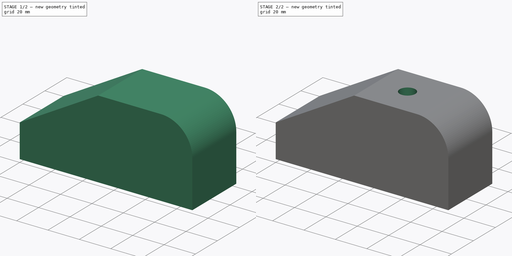
[diagram: build sequence overview — one tinted view per stage of 2, left to right]
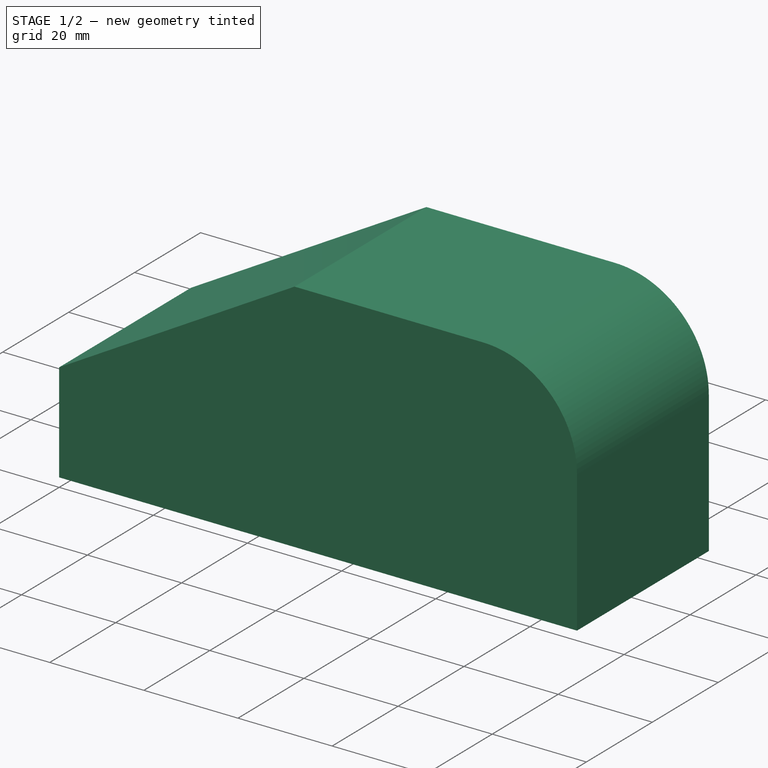
[diagram: stage 1 of 2 — iso view after this stage's code; geometry added in this stage tinted green]
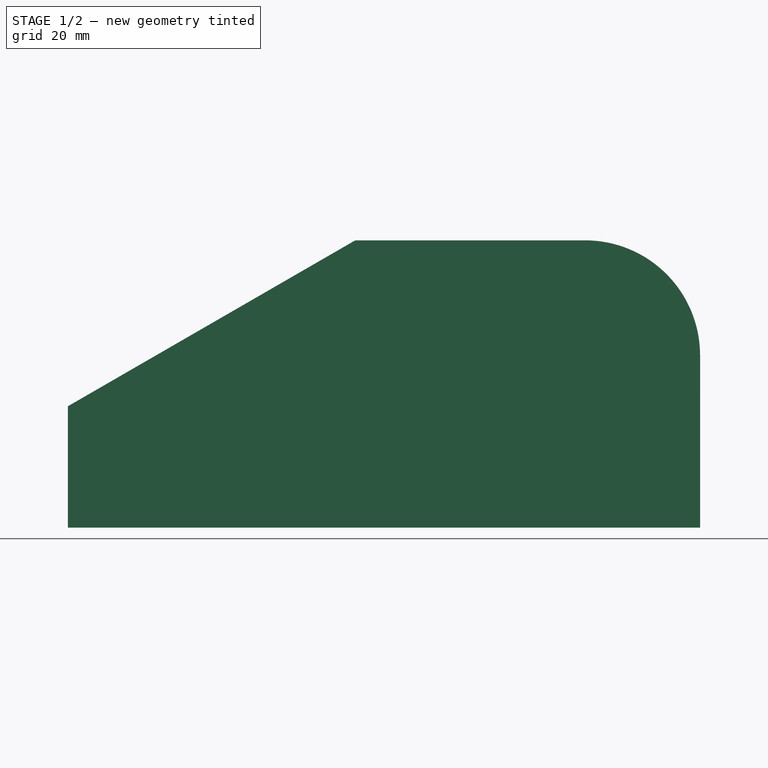
[diagram: stage 1 of 2 — front view after this stage's code; geometry added in this stage tinted green]
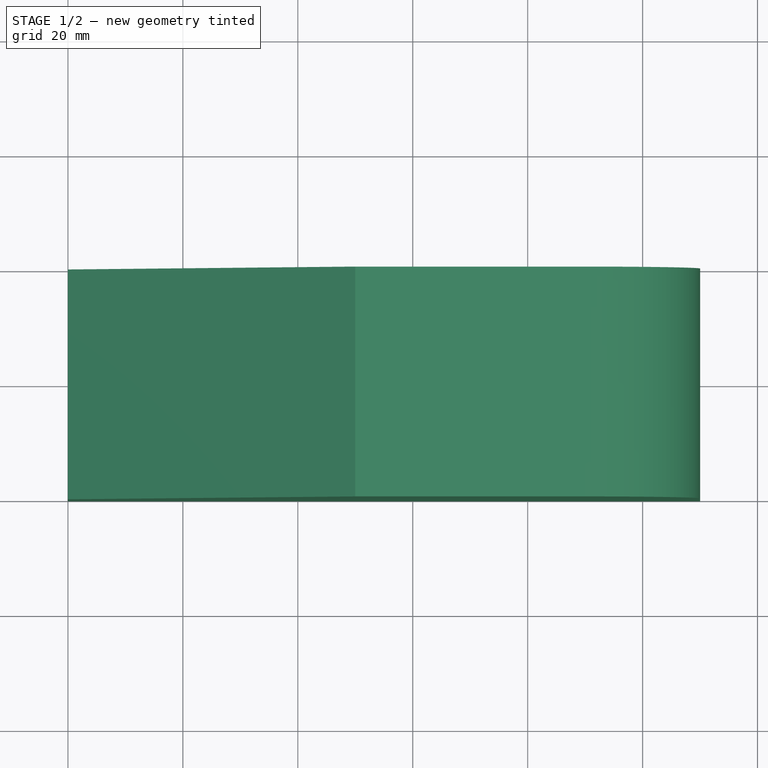
[diagram: stage 1 of 2 — top view after this stage's code; geometry added in this stage tinted green]
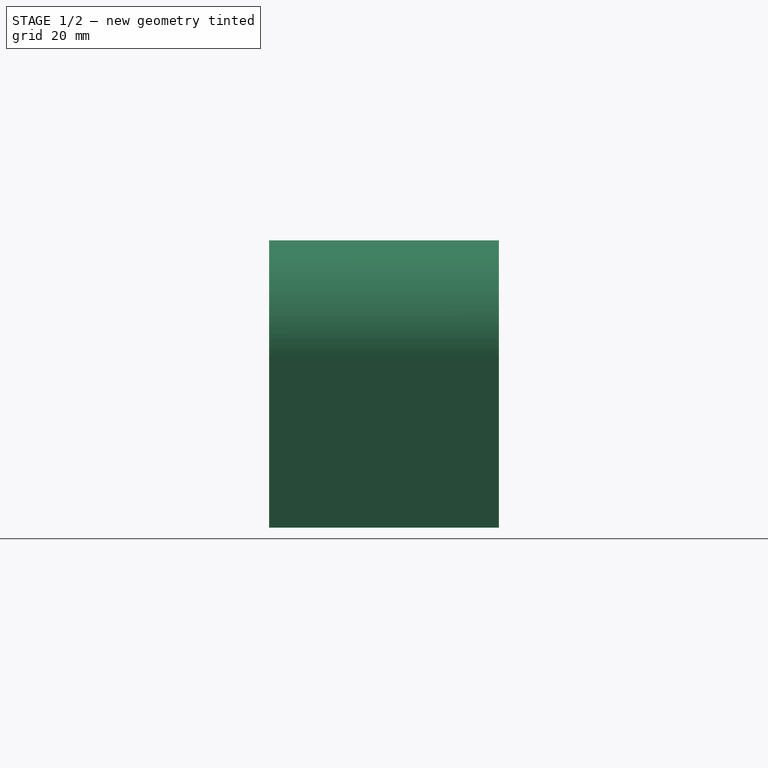
[diagram: stage 1 of 2 — right view after this stage's code; geometry added in this stage tinted green]
FCSTD DOCUMENT  (FreeCAD 0.18R16117 (Git))
Label: freecad_tutorial1
License: All rights reserved
LicenseURL: http://en.wikipedia.org/wiki/All_rights_reserved
objects: Sketcher::SketchObject×2, PartDesign::Pad×1, PartDesign::Pocket×1, PartDesign::Body×1
note: 7 computed .brp shape members not serialized (recipe doc carries the construction recipe); baked Part::Feature solids carry a one-line shape summary decoded from their .brp

FEATURE [Sketcher::SketchObject] Sketch
  MapMode = 5
  Placement = pos=(0,0,0) rot=(1,0,0;1.5708rad)
  Support = -> [XZ_Plane]
  sketch-geometry (6):
    g0: LineSegment StartX=0 StartY=0 StartZ=0 EndX=110 EndY=0 EndZ=0
    g1: LineSegment StartX=110 StartY=0 StartZ=0 EndX=110 EndY=30 EndZ=0
    g2: LineSegment StartX=0 StartY=0 StartZ=0 EndX=0 EndY=21.1325 EndZ=0
    g3: LineSegment StartX=0 StartY=21.1325 StartZ=0 EndX=50 EndY=50 EndZ=0
    g4: LineSegment StartX=50 StartY=50 StartZ=0 EndX=90 EndY=50 EndZ=0
    g5: ArcOfCircle CenterX=90 CenterY=30 CenterZ=0 NormalX=0 NormalY=0 NormalZ=1 AngleXU=0 Radius=20 StartAngle=0 EndAngle=1.5708
  constraints (18):
    c: Horizontal(g0)
    c: Horizontal(g4)
    c: Vertical(g1)
    c: Vertical(g2)
    c: Angle(g0,g3) = 0.523599
    c: DistanceX(g0,g0) = 110
    c: Coincident(g2,g0)
    c: Coincident(g2,g3)
    c: Coincident(g4,g3)
    c: DistanceY(g0,g3) = 50
    c: DistanceX(g2,g3) = 50
    c: Coincident(g1,g0)
    c: Radius(g5) = 20
    c: Tangent(g5,g4) = 1.5708
    c: Tangent(g5,g1) = -1.5708
    c: Coincident(g0,g-1)
    c: Distance(g4) = 40
    c: Distance(g1) = 30
FEATURE [PartDesign::Pad] Pad
  Length = 40
  Length2 = 100
  Placement = pos=(0,0,0) rot=(1,0,0;1.5708rad)
  Profile = -> Sketch
  Type = 0
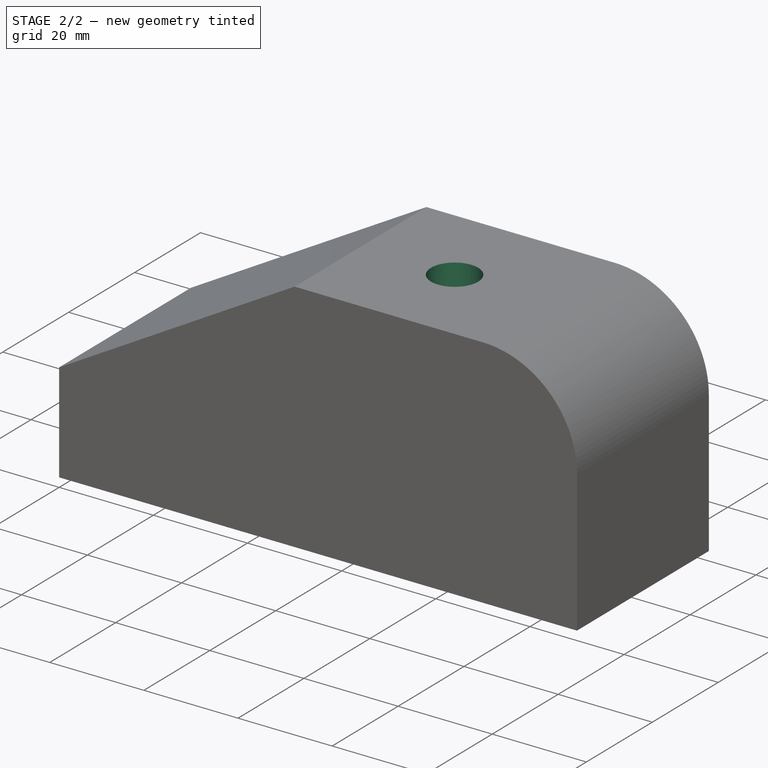
[diagram: stage 2 of 2 — iso view after this stage's code; geometry added in this stage tinted green]
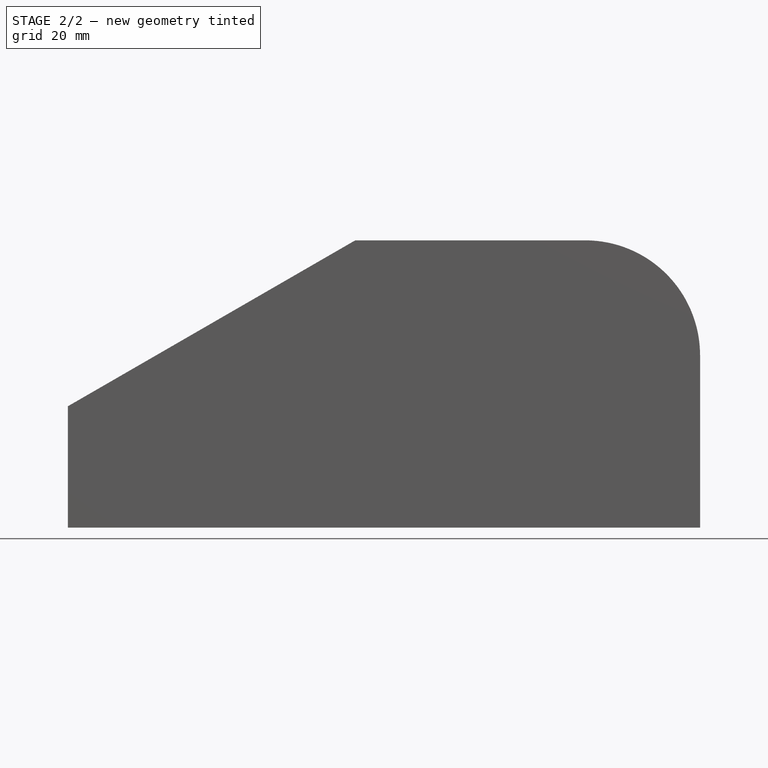
[diagram: stage 2 of 2 — front view after this stage's code; geometry added in this stage tinted green]
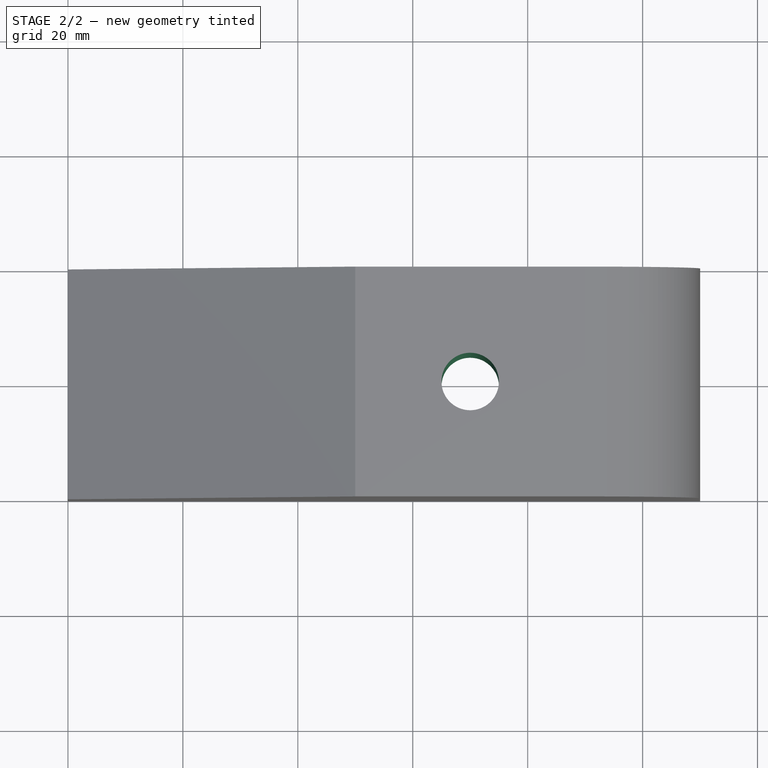
[diagram: stage 2 of 2 — top view after this stage's code; geometry added in this stage tinted green]
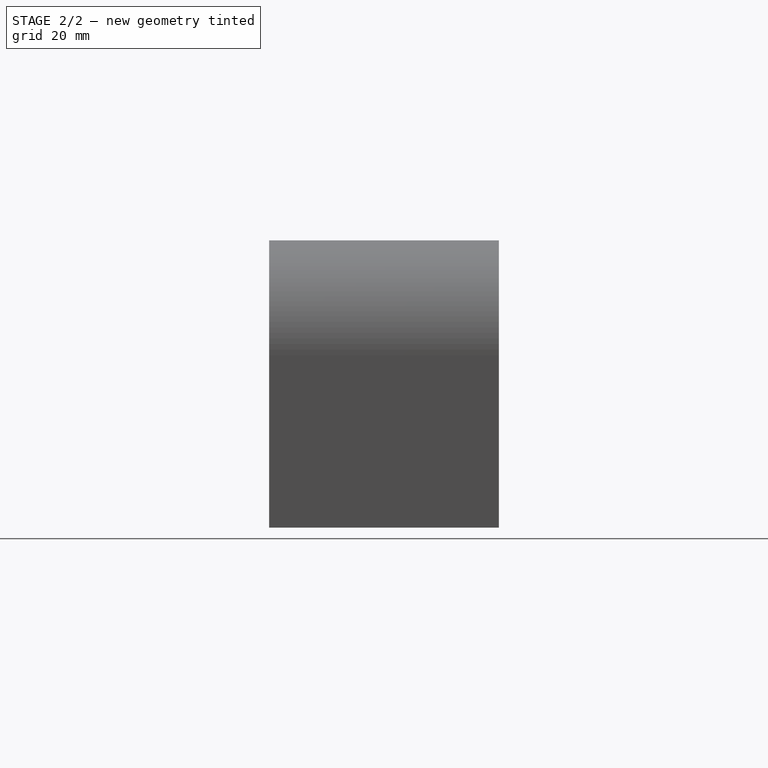
[diagram: stage 2 of 2 — right view after this stage's code; geometry added in this stage tinted green]
FEATURE [Sketcher::SketchObject] Sketch001
  ExternalGeometry = -> [Pad]
  MapMode = 5
  Placement = pos=(0,2.2e-14,50) rot=(0,0,1;3.14159rad)
  Support = -> [Pad]
  sketch-geometry (1):
    g0: Circle CenterX=-70 CenterY=20 CenterZ=0 NormalX=0 NormalY=0 NormalZ=1 AngleXU=0 Radius=5
  constraints (2):
    c: Radius(g0) = 5
    c: Symmetric(g-3,g-4,g0)
FEATURE [PartDesign::Pocket] Pocket
  BaseFeature = -> Pad
  Length = 5
  Length2 = 100
  Placement = pos=(0,0,0) rot=(1,0,0;1.5708rad)
  Profile = -> Sketch001
  Type = 1
FEATURE [PartDesign::Body] Body  label="Body part1"
  Group = -> [Sketch,Pad,Sketch001,Pocket]
  Origin = -> Origin
  Tip = -> Pocket
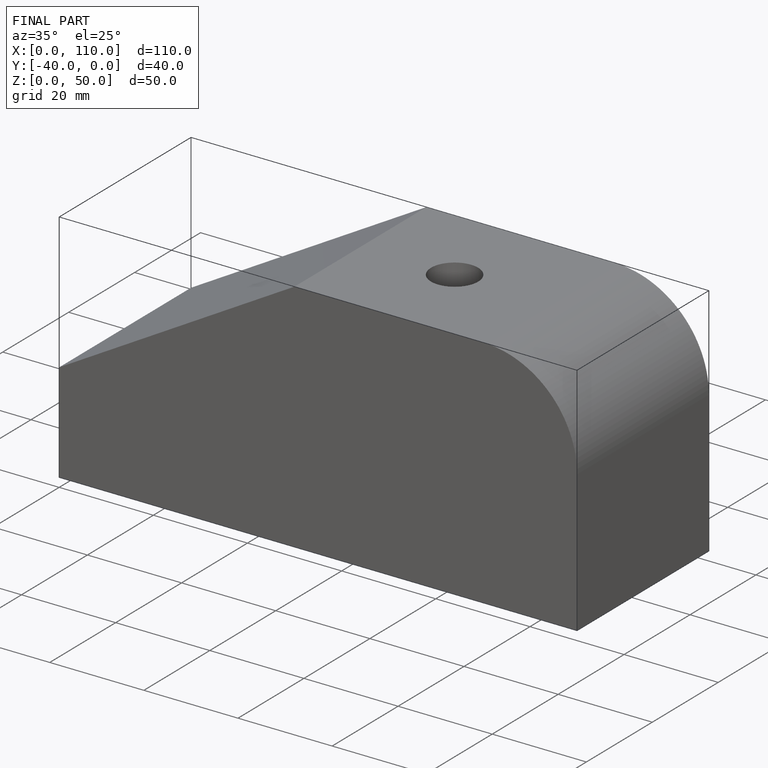
[diagram: finished part — iso view with bounding-box wireframe]
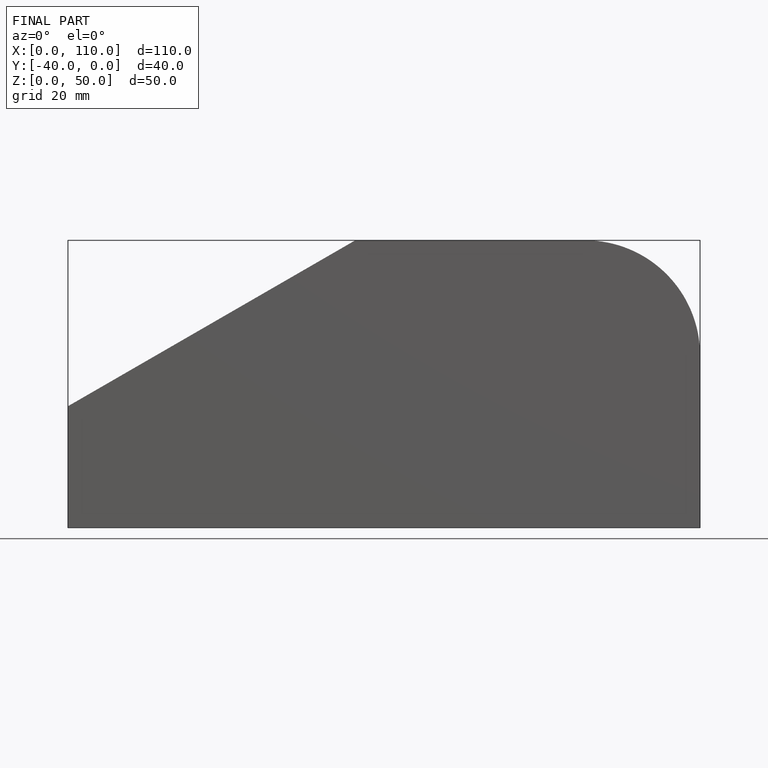
[diagram: finished part — front view with bounding-box wireframe]
